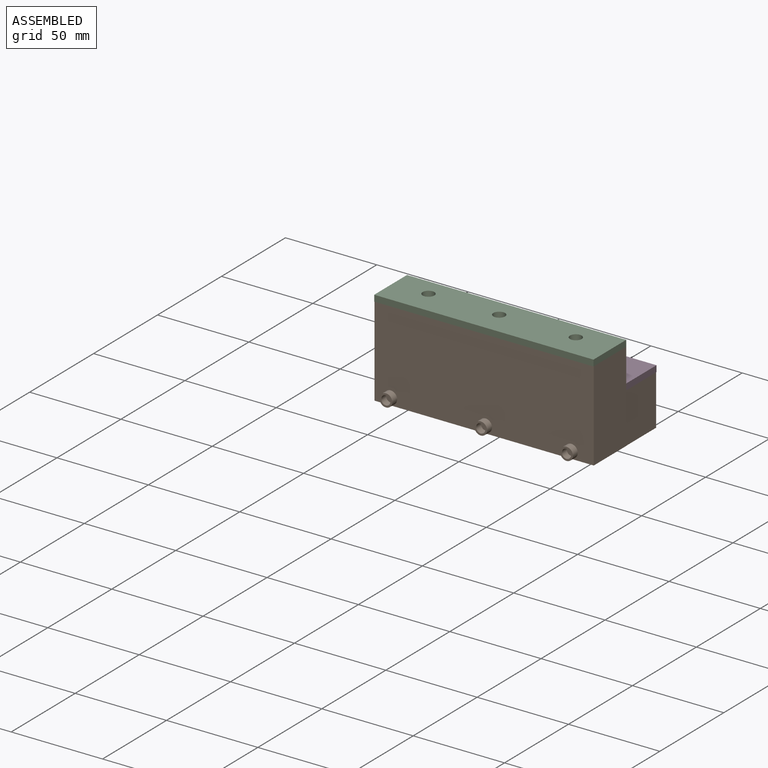
[diagram: assembled view]
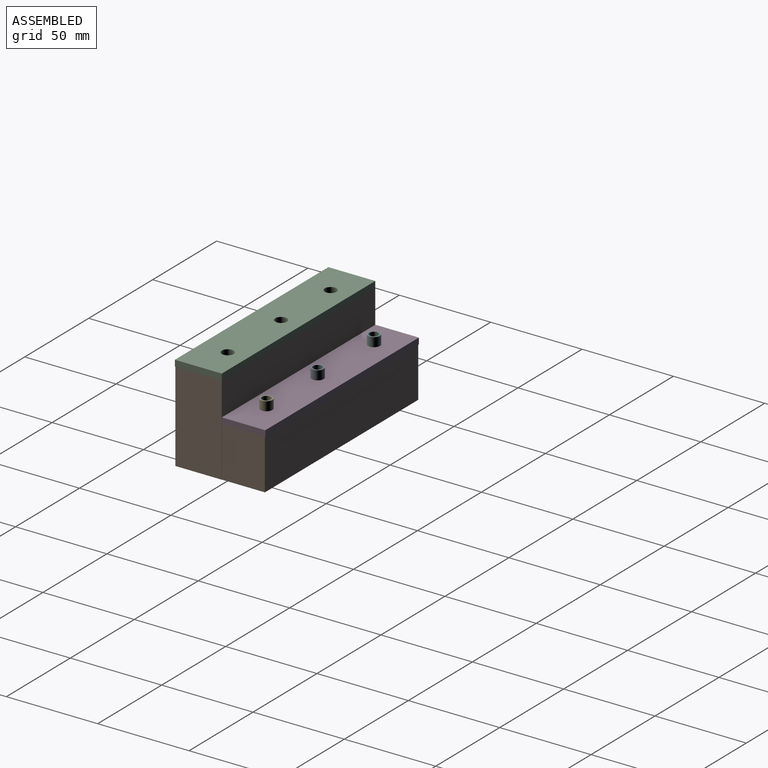
[diagram: assembled view, second angle]
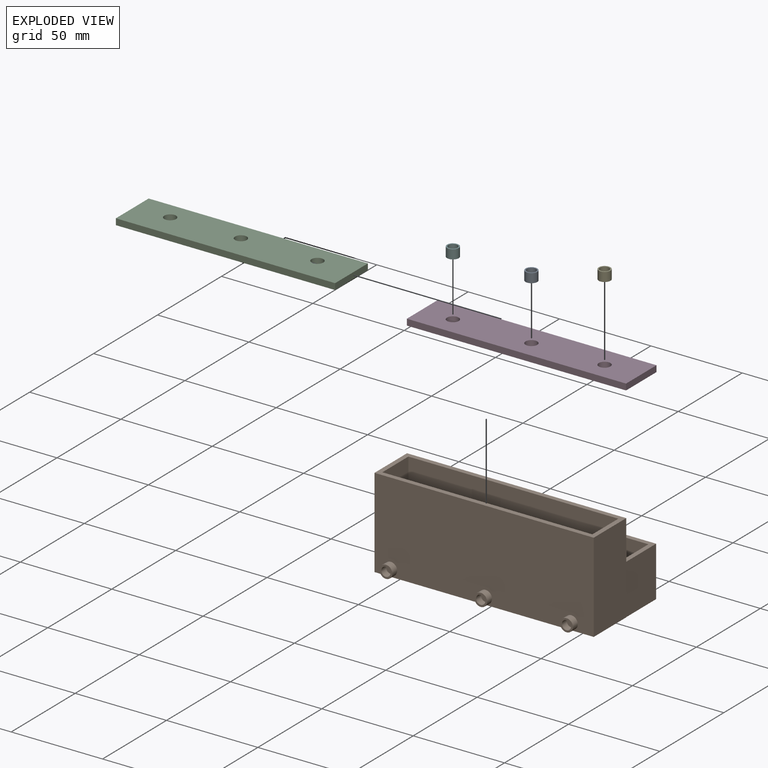
[diagram: exploded view]
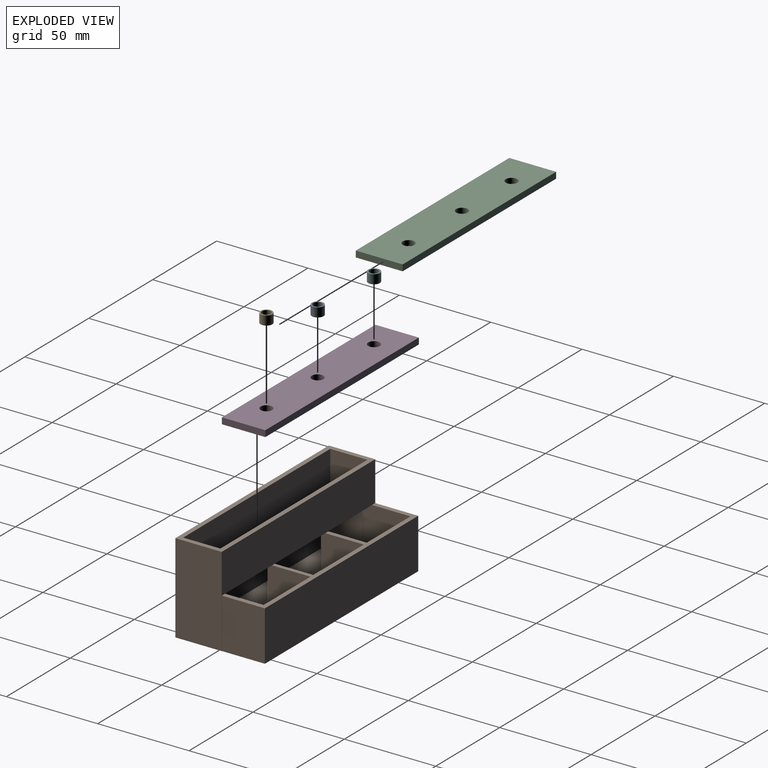
[diagram: exploded view, second angle]
ASSEMBLY  parts=6 mates=6
PART A: 4 faces, bbox 6.4x6.4x5 mm
  f0: cylinder r=3.21mm len=6.42mm, axis (0,0,-1), area 100.8mm2, adj f1,f2
  f1: plane 6.42x6.42mm, normal (0,0,1), area 12.7mm2, adj f0,f3
  f2: plane 6.42x6.42mm, normal (0,0,-1), area 12.7mm2, adj f0,f3
  f3: cylinder r=2.5mm len=5mm, axis (0,0,1), area 78.5mm2, adj f1,f2
PART B: 44 faces, bbox 120x52.7x49.1 mm
  f0: plane 24.76x2.38mm, normal (0,-1,0), area 59mm2, adj f10,f23,f24,f25
  f1: plane 114.92x46.54mm, normal (0,-1,0), area 2492.8mm2, adj f5,f10,f11,f12,f18,f22
  f2: plane 39.55x26.08mm, normal (0,0,1), area 1031.5mm2, adj f21,f24,f26,f29
  f3: plane 33.96x26.08mm, normal (0,0,1), area 885.9mm2, adj f20,f21,f23,f31
  f4: plane 120x49.08mm, normal (0,1,0), area 2604.2mm2, adj f5,f6,f7,f8,f15,f17,f18
  f5: plane 120x25.4mm, normal (0,0,1), area 712.8mm2, adj f1,f4,f7,f8,f9,f11,f12,f13
  f6: plane 120x48.94mm, normal (0,0,-1), area 5870.9mm2, adj f4,f7,f8,f9,f16,f17
  f7: plane 49.08x25.4mm, normal (1,0,0), area 1246.7mm2, adj f4,f5,f6,f9
  f8: plane 49.08x48.94mm, normal (-1,0,0), area 1891.8mm2, adj f4,f5,f6,f9,f15,f16
  f9: plane 120x49.08mm, normal (0,-1,0), area 5774.3mm2, adj f5,f6,f7,f8,f33,f37,f41
  f10: plane 114.92x20.32mm, normal (0,0,1), area 2059.2mm2, adj f0,f1,f11,f12,f13,f14,f22,f23
  f11: plane 46.54x20.32mm, normal (-1,0,0), area 945.7mm2, adj f1,f5,f10,f13
  f12: plane 46.54x20.32mm, normal (1,0,0), area 883.6mm2, adj f1,f5,f10,f13,f18,f31
  f13: plane 114.92x46.54mm, normal (0,1,0), area 5348.5mm2, adj f5,f10,f11,f12
  f14: plane 24.76x2.1mm, normal (0,-1,0), area 51.9mm2, adj f10,f26,f27,f28
  f15: plane 119.9x23.54mm, normal (0,0,1), area 405mm2, adj f4,f8,f16,f17,f20,f21,f22
  f16: plane 119.9x27.4mm, normal (0,1,0), area 3285.5mm2, adj f6,f8,f15,f17
  f17: plane 27.4x23.54mm, normal (1,0,0), area 645.2mm2, adj f4,f6,f15,f16
  f18: plane 114.9x5.04mm, normal (0,0,-1), area 291.9mm2, adj f1,f4,f12,f20,f22,f31
  f19: plane 36.91x26.08mm, normal (0,0,1), area 962.8mm2, adj f21,f22,f27,f30
  f20: plane 26.08x24.9mm, normal (1,0,0), area 649.5mm2, adj f3,f15,f18,f21,f31
  f21: plane 114.9x24.9mm, normal (0,-1,0), area 2750.2mm2, adj f2,f3,f15,f19,f20,f22,f23,f24
  f22: plane 26.08x24.9mm, normal (-1,0,0), area 587.4mm2, adj f1,f10,f15,f18,f19,f21,f30
  f23: plane 26.08x24.8mm, normal (-1,0,0), area 585mm2, adj f0,f3,f10,f21,f25,f31
  f24: plane 26.08x24.8mm, normal (1,0,0), area 585mm2, adj f0,f2,f10,f21,f25,f29
  f25: plane 23.58x2.38mm, normal (0,0,1), area 56.2mm2, adj f0,f21,f23,f24
  f26: plane 26.08x24.8mm, normal (-1,0,0), area 585mm2, adj f2,f10,f14,f21,f28,f29
  f27: plane 26.08x24.8mm, normal (1,0,0), area 585mm2, adj f10,f14,f19,f21,f28,f30
  f28: plane 23.58x2.1mm, normal (0,0,1), area 49.4mm2, adj f14,f21,f26,f27
  f29: plane 39.55x0.04mm, normal (0,1,0), area 1.6mm2, adj f2,f10,f24,f26
  f30: plane 36.91x0.04mm, normal (0,1,0), area 1.5mm2, adj f10,f19,f22,f27
  f31: plane 33.96x24.9mm, normal (0,1,0), area 2.4mm2, adj f3,f10,f12,f18,f20,f23
  f32: cylinder r=2.5mm len=5mm, axis (0,1,0), area 59.7mm2, adj f34,f35
  f33: cylinder r=3.5mm len=7mm, axis (0,1,0), area 83.6mm2, adj f9,f34
  f34: plane 7x7mm, normal (0,-1,0), area 18.8mm2, adj f32,f33
  f35: plane 5x5mm, normal (0,-1,0), area 19.6mm2, adj f32
  f36: cylinder r=2.5mm len=5mm, axis (0,1,0), area 59.7mm2, adj f38,f39
  f37: cylinder r=3.5mm len=7mm, axis (0,1,0), area 83.6mm2, adj f9,f38
  f38: plane 7x7mm, normal (0,-1,0), area 18.8mm2, adj f36,f37
  f39: plane 5x5mm, normal (0,-1,0), area 19.6mm2, adj f36
  f40: cylinder r=2.5mm len=5mm, axis (0,1,0), area 59.7mm2, adj f42,f43
  f41: cylinder r=3.5mm len=7mm, axis (0,1,0), area 83.6mm2, adj f9,f42
  f42: plane 7x7mm, normal (0,-1,0), area 18.8mm2, adj f40,f41
  f43: plane 5x5mm, normal (0,-1,0), area 19.6mm2, adj f40
PART C: 9 faces, bbox 120x25.6x3.4 mm
  f0: plane 25.64x3.4mm, normal (-1,0,0), area 87.2mm2, adj f1,f6,f7,f8
  f1: plane 120x3.4mm, normal (0,-1,0), area 408mm2, adj f0,f2,f7,f8
  f2: plane 25.64x3.4mm, normal (1,0,0), area 87.2mm2, adj f1,f6,f7,f8
  f3: cylinder r=3.21mm len=6.42mm, axis (0,0,-1), area 68.6mm2, adj f7,f8
  f4: cylinder r=3.21mm len=6.42mm, axis (0,0,-1), area 68.6mm2, adj f7,f8
  f5: cylinder r=3.21mm len=6.42mm, axis (0,0,-1), area 68.6mm2, adj f7,f8
  f6: plane 120x3.4mm, normal (0,1,0), area 408mm2, adj f0,f2,f7,f8
  f7: plane 120x25.64mm, normal (0,0,1), area 2979.7mm2, adj f0,f1,f2,f3,f4,f5,f6
  f8: plane 120x25.64mm, normal (0,0,-1), area 2979.7mm2, adj f0,f1,f2,f3,f4,f5,f6
PART D: 9 faces, bbox 120x23.8x3.4 mm
  f0: plane 23.8x3.4mm, normal (-1,0,0), area 80.9mm2, adj f1,f6,f7,f8
  f1: plane 120x3.4mm, normal (0,-1,0), area 408mm2, adj f0,f2,f7,f8
  f2: plane 23.8x3.4mm, normal (1,0,0), area 80.9mm2, adj f1,f6,f7,f8
  f3: cylinder r=3.21mm len=6.42mm, axis (0,0,-1), area 68.6mm2, adj f7,f8
  f4: cylinder r=3.21mm len=6.42mm, axis (0,0,-1), area 68.6mm2, adj f7,f8
  f5: cylinder r=3.21mm len=6.42mm, axis (0,0,-1), area 68.6mm2, adj f7,f8
  f6: plane 120x3.4mm, normal (0,1,0), area 408mm2, adj f0,f2,f7,f8
  f7: plane 120x23.8mm, normal (0,0,1), area 2758.9mm2, adj f0,f1,f2,f3,f4,f5,f6
  f8: plane 120x23.8mm, normal (0,0,-1), area 2758.9mm2, adj f0,f1,f2,f3,f4,f5,f6
PART E: 4 faces, bbox 6.4x6.4x5 mm
  f0: cylinder r=3.21mm len=6.42mm, axis (0,0,-1), area 100.8mm2, adj f1,f2
  f1: plane 6.42x6.42mm, normal (0,0,1), area 12.7mm2, adj f0,f3
  f2: plane 6.42x6.42mm, normal (0,0,-1), area 12.7mm2, adj f0,f3
  f3: cylinder r=2.5mm len=5mm, axis (0,0,1), area 78.5mm2, adj f1,f2
PART F: 4 faces, bbox 6.4x6.4x5 mm
  f0: cylinder r=3.21mm len=6.42mm, axis (0,0,-1), area 100.8mm2, adj f1,f2
  f1: plane 6.42x6.42mm, normal (0,0,1), area 12.7mm2, adj f0,f3
  f2: plane 6.42x6.42mm, normal (0,0,-1), area 12.7mm2, adj f0,f3
  f3: cylinder r=2.5mm len=5mm, axis (0,0,1), area 78.5mm2, adj f1,f2
PLACE A t=(3.75,-2.44,-58.07)mm
PLACE B t=(49.58,54.04,-61.47)mm
PLACE C t=(69.1,81.62,-39.79)mm
PLACE D t=(49.27,24.74,-61.47)mm
PLACE E t=(52.43,-2.94,-58.07)mm
PLACE F t=(-49.24,-1.46,-58.07)mm
MATE slider A.f0 <-> D.f4  axis (0,0,-1) through (49.27,64.89,-58.07)mm
MATE parallel C.f2 <-> B.f7  axis (1,0,0) through (108.78,54.04,-39.79)mm
MATE parallel D.f2 <-> B.f17  axis (1,0,0) through (108.68,54.04,-61.47)mm
MATE slider F.f0 <-> D.f3  axis (0,0,-1) through (5.95,65.4,-58.07)mm
MATE parallel B.f15 <-> B.f15  axis (0,0,1) through (108.68,54.04,-61.47)mm
MATE slider E.f0 <-> D.f5  axis (0,0,-1) through (89.32,64.89,-58.07)mm
